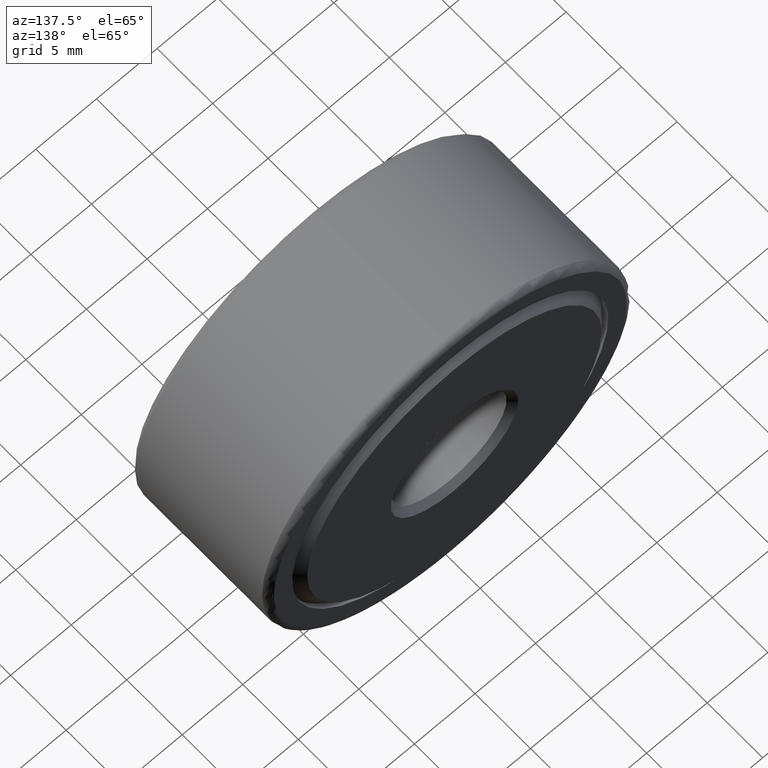
[diagram: clean part render]
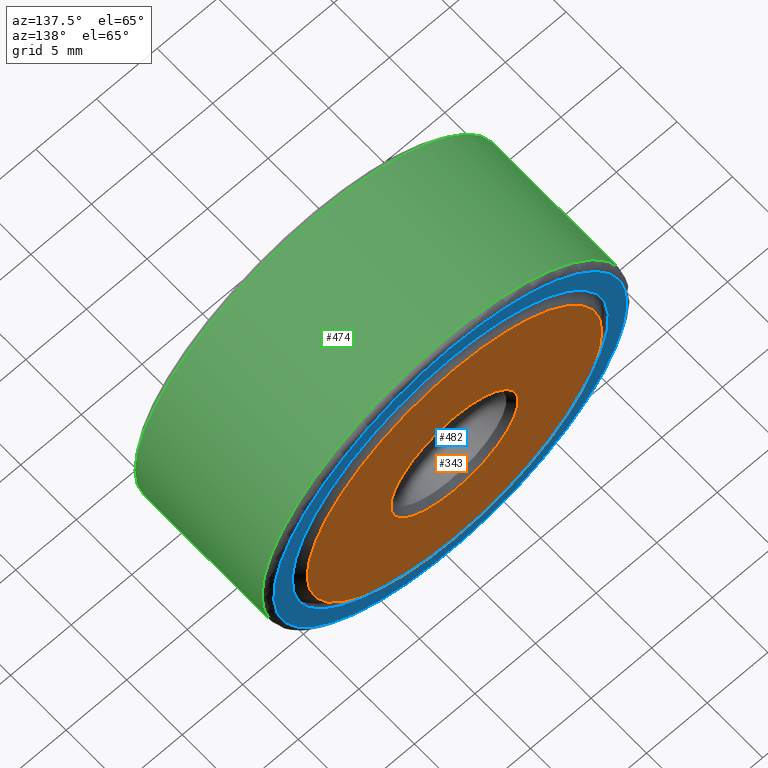
[diagram: same view with three faces highlighted in distinct colors, each labeled with its STEP entity id]
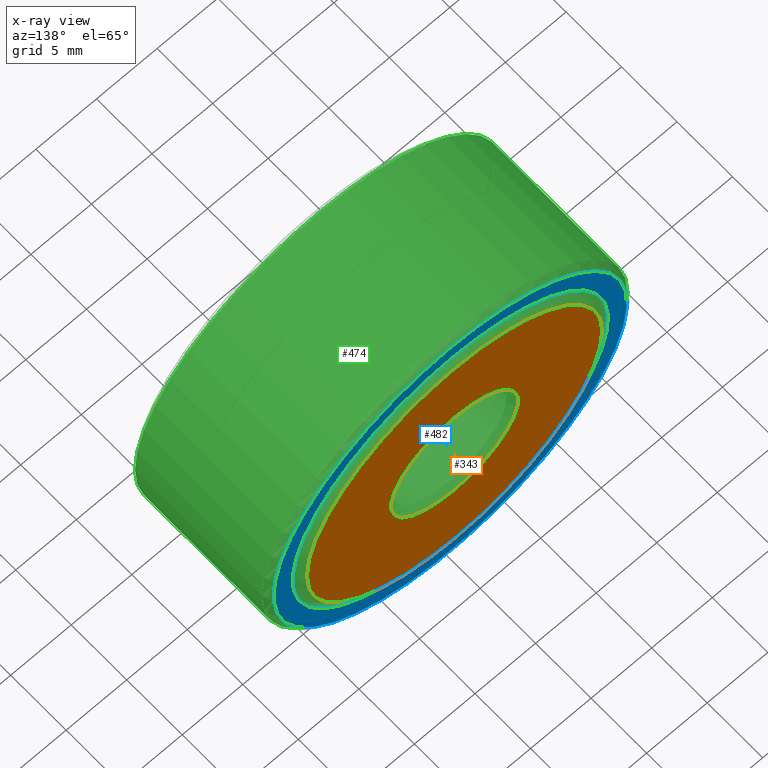
[diagram: x-ray of the same camera — body ghosted, the three highlighted faces saturated]
A machine part, auxiliary view with three faces highlighted in distinct colors.
The next image is the same camera in x-ray (body ghosted, the three faces saturated) — at least one of them is partly hidden behind the body in this view.
Their STEP definitions:

[orange] entity #343 — the highlighted planar face has unit normal (-0, 1, 0).
#10 = ORIENTED_EDGE ( 'NONE', *, *, #45, .F. ) ;
#36 = CARTESIAN_POINT ( 'NONE',  ( 1.258916126112564200E-016, 0.5000000000000000000, 0.0000000000000000000 ) ) ;
#45 = EDGE_CURVE ( 'NONE', #440, #440, #261, .T. ) ;
#53 = VERTEX_POINT ( 'NONE', #154 ) ;
#107 = EDGE_LOOP ( 'NONE', ( #192 ) ) ;
#138 = PLANE ( 'NONE',  #233 ) ;
#139 = AXIS2_PLACEMENT_3D ( 'NONE', #468, #149, #206 ) ;
#149 = DIRECTION ( 'NONE',  ( -0.0000000000000000000, 1.000000000000000000, -0.0000000000000000000 ) ) ;
#154 = CARTESIAN_POINT ( 'NONE',  ( 0.0000000000000000000, 0.5000000000000000000, 0.4787499999999999000 ) ) ;
#190 = DIRECTION ( 'NONE',  ( 0.0000000000000000000, 0.0000000000000000000, 1.000000000000000000 ) ) ;
#192 = ORIENTED_EDGE ( 'NONE', *, *, #598, .T. ) ;
#206 = DIRECTION ( 'NONE',  ( 0.0000000000000000000, 0.0000000000000000000, 1.000000000000000000 ) ) ;
#222 = DIRECTION ( 'NONE',  ( -0.0000000000000000000, 1.000000000000000000, -0.0000000000000000000 ) ) ;
#233 = AXIS2_PLACEMENT_3D ( 'NONE', #36, #553, #190 ) ;
#258 = FACE_OUTER_BOUND ( 'NONE', #107, .T. ) ;
#261 = CIRCLE ( 'NONE', #298, 0.2075000000000001000 ) ;
#298 = AXIS2_PLACEMENT_3D ( 'NONE', #301, #222, #580 ) ;
#301 = CARTESIAN_POINT ( 'NONE',  ( 0.0000000000000000000, 0.4999999999999999400, 0.0000000000000000000 ) ) ;
#343 = ADVANCED_FACE ( 'NONE', ( #258, #525 ), #138, .T. ) ;
#440 = VERTEX_POINT ( 'NONE', #517 ) ;
#441 = EDGE_LOOP ( 'NONE', ( #10 ) ) ;
#468 = CARTESIAN_POINT ( 'NONE',  ( 0.0000000000000000000, 0.5000000000000000000, 0.0000000000000000000 ) ) ;
#517 = CARTESIAN_POINT ( 'NONE',  ( 0.0000000000000000000, 0.4999999999999999400, 0.2075000000000001000 ) ) ;
#525 = FACE_BOUND ( 'NONE', #441, .T. ) ;
#553 = DIRECTION ( 'NONE',  ( -0.0000000000000000000, 1.000000000000000000, 0.0000000000000000000 ) ) ;
#561 = CIRCLE ( 'NONE', #139, 0.4787499999999999000 ) ;
#580 = DIRECTION ( 'NONE',  ( 0.0000000000000000000, 0.0000000000000000000, 1.000000000000000000 ) ) ;
#598 = EDGE_CURVE ( 'NONE', #53, #53, #561, .T. ) ;

[blue] entity #482 — the highlighted planar face has unit normal (0, -1, 0).
#23 = DIRECTION ( 'NONE',  ( 0.0000000000000000000, 0.0000000000000000000, 1.000000000000000000 ) ) ;
#47 = DIRECTION ( 'NONE',  ( 0.0000000000000000000, 0.0000000000000000000, 1.000000000000000000 ) ) ;
#50 = ORIENTED_EDGE ( 'NONE', *, *, #105, .T. ) ;
#100 = DIRECTION ( 'NONE',  ( 0.0000000000000000000, -1.000000000000000000, 0.0000000000000000000 ) ) ;
#101 = CIRCLE ( 'NONE', #504, 0.5137499999999999300 ) ;
#105 = EDGE_CURVE ( 'NONE', #362, #362, #354, .T. ) ;
#137 = CARTESIAN_POINT ( 'NONE',  ( 0.0000000000000000000, 0.4850000000000000400, 0.0000000000000000000 ) ) ;
#145 = CARTESIAN_POINT ( 'NONE',  ( 0.0000000000000000000, 0.4850000000000000400, 0.0000000000000000000 ) ) ;
#172 = CARTESIAN_POINT ( 'NONE',  ( 0.0000000000000000000, 0.4850000000000000400, 0.0000000000000000000 ) ) ;
#198 = FACE_BOUND ( 'NONE', #390, .T. ) ;
#221 = AXIS2_PLACEMENT_3D ( 'NONE', #172, #353, #23 ) ;
#286 = FACE_OUTER_BOUND ( 'NONE', #434, .T. ) ;
#287 = DIRECTION ( 'NONE',  ( 0.0000000000000000000, -0.0000000000000000000, -1.000000000000000000 ) ) ;
#291 = ORIENTED_EDGE ( 'NONE', *, *, #340, .F. ) ;
#319 = VERTEX_POINT ( 'NONE', #425 ) ;
#321 = DIRECTION ( 'NONE',  ( -0.0000000000000000000, 1.000000000000000000, -0.0000000000000000000 ) ) ;
#340 = EDGE_CURVE ( 'NONE', #319, #319, #101, .T. ) ;
#353 = DIRECTION ( 'NONE',  ( -0.0000000000000000000, 1.000000000000000000, -0.0000000000000000000 ) ) ;
#354 = CIRCLE ( 'NONE', #221, 0.5737499999999999800 ) ;
#362 = VERTEX_POINT ( 'NONE', #558 ) ;
#390 = EDGE_LOOP ( 'NONE', ( #291 ) ) ;
#425 = CARTESIAN_POINT ( 'NONE',  ( 0.0000000000000000000, 0.4850000000000000400, 0.5137499999999999300 ) ) ;
#429 = PLANE ( 'NONE',  #466 ) ;
#434 = EDGE_LOOP ( 'NONE', ( #50 ) ) ;
#466 = AXIS2_PLACEMENT_3D ( 'NONE', #145, #100, #287 ) ;
#482 = ADVANCED_FACE ( 'NONE', ( #198, #286 ), #429, .F. ) ;
#504 = AXIS2_PLACEMENT_3D ( 'NONE', #137, #321, #47 ) ;
#558 = CARTESIAN_POINT ( 'NONE',  ( 0.0000000000000000000, 0.4850000000000000400, 0.5737499999999999800 ) ) ;

[green] entity #474 — the highlighted cylindrical surface (bore or boss wall) has radius 15.0812 mm, axis along (-0, 1, -0).
#61 = EDGE_CURVE ( 'NONE', #280, #280, #153, .T. ) ;
#63 = ORIENTED_EDGE ( 'NONE', *, *, #279, .T. ) ;
#87 = CYLINDRICAL_SURFACE ( 'NONE', #535, 0.5937500000000000000 ) ;
#92 = DIRECTION ( 'NONE',  ( -0.0000000000000000000, 1.000000000000000000, -0.0000000000000000000 ) ) ;
#104 = CARTESIAN_POINT ( 'NONE',  ( 0.0000000000000000000, 0.4650000000000000800, 0.5937500000000000000 ) ) ;
#109 = CIRCLE ( 'NONE', #510, 0.5937499999999998900 ) ;
#153 = CIRCLE ( 'NONE', #544, 0.5937500000000000000 ) ;
#165 = FACE_OUTER_BOUND ( 'NONE', #315, .T. ) ;
#169 = DIRECTION ( 'NONE',  ( -0.0000000000000000000, 1.000000000000000000, -0.0000000000000000000 ) ) ;
#178 = CARTESIAN_POINT ( 'NONE',  ( 0.0000000000000000000, 0.01499999999999997700, 0.0000000000000000000 ) ) ;
#182 = DIRECTION ( 'NONE',  ( 0.0000000000000000000, 0.0000000000000000000, 1.000000000000000000 ) ) ;
#185 = FACE_OUTER_BOUND ( 'NONE', #484, .T. ) ;
#227 = DIRECTION ( 'NONE',  ( -0.0000000000000000000, 1.000000000000000000, -0.0000000000000000000 ) ) ;
#279 = EDGE_CURVE ( 'NONE', #344, #344, #109, .T. ) ;
#280 = VERTEX_POINT ( 'NONE', #104 ) ;
#315 = EDGE_LOOP ( 'NONE', ( #63 ) ) ;
#323 = CARTESIAN_POINT ( 'NONE',  ( 0.0000000000000000000, 0.0000000000000000000, 0.0000000000000000000 ) ) ;
#331 = DIRECTION ( 'NONE',  ( 0.0000000000000000000, 0.0000000000000000000, 1.000000000000000000 ) ) ;
#344 = VERTEX_POINT ( 'NONE', #424 ) ;
#399 = CARTESIAN_POINT ( 'NONE',  ( 0.0000000000000000000, 0.4650000000000000800, 0.0000000000000000000 ) ) ;
#424 = CARTESIAN_POINT ( 'NONE',  ( 0.0000000000000000000, 0.01499999999999997700, 0.5937499999999998900 ) ) ;
#472 = ORIENTED_EDGE ( 'NONE', *, *, #61, .F. ) ;
#474 = ADVANCED_FACE ( 'NONE', ( #185, #165 ), #87, .T. ) ;
#484 = EDGE_LOOP ( 'NONE', ( #472 ) ) ;
#510 = AXIS2_PLACEMENT_3D ( 'NONE', #178, #227, #182 ) ;
#535 = AXIS2_PLACEMENT_3D ( 'NONE', #323, #92, #331 ) ;
#544 = AXIS2_PLACEMENT_3D ( 'NONE', #399, #169, #582 ) ;
#582 = DIRECTION ( 'NONE',  ( 0.0000000000000000000, 0.0000000000000000000, 1.000000000000000000 ) ) ;